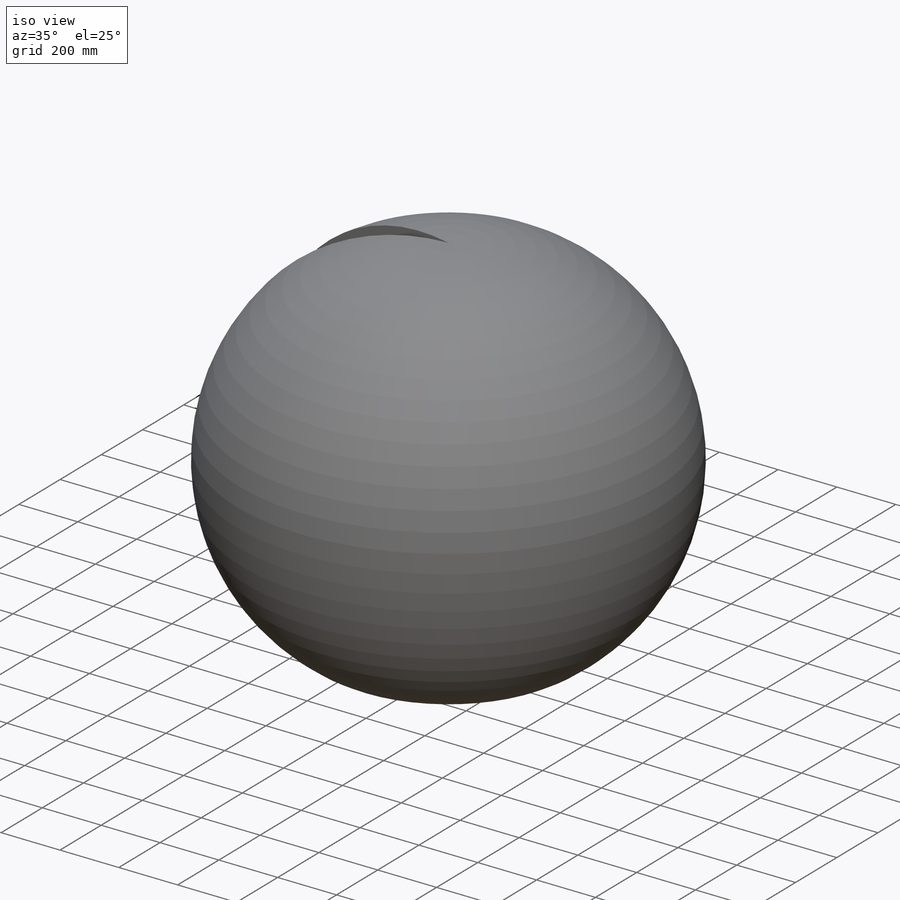
[diagram: iso view]
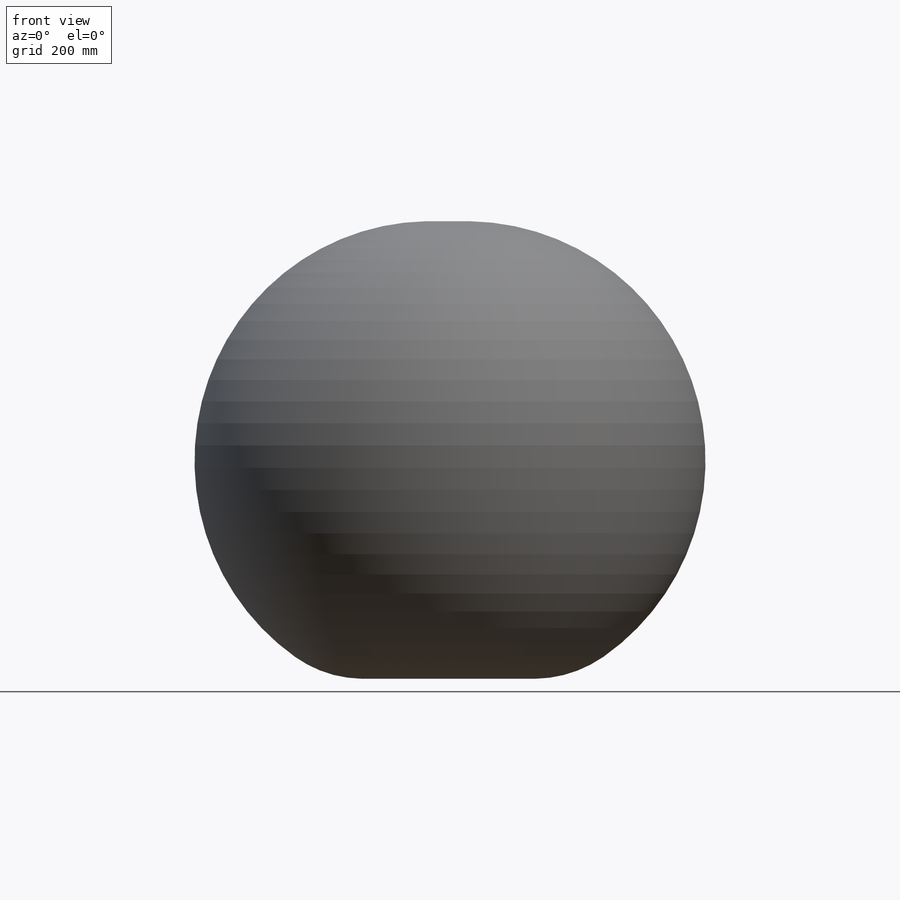
[diagram: front view]
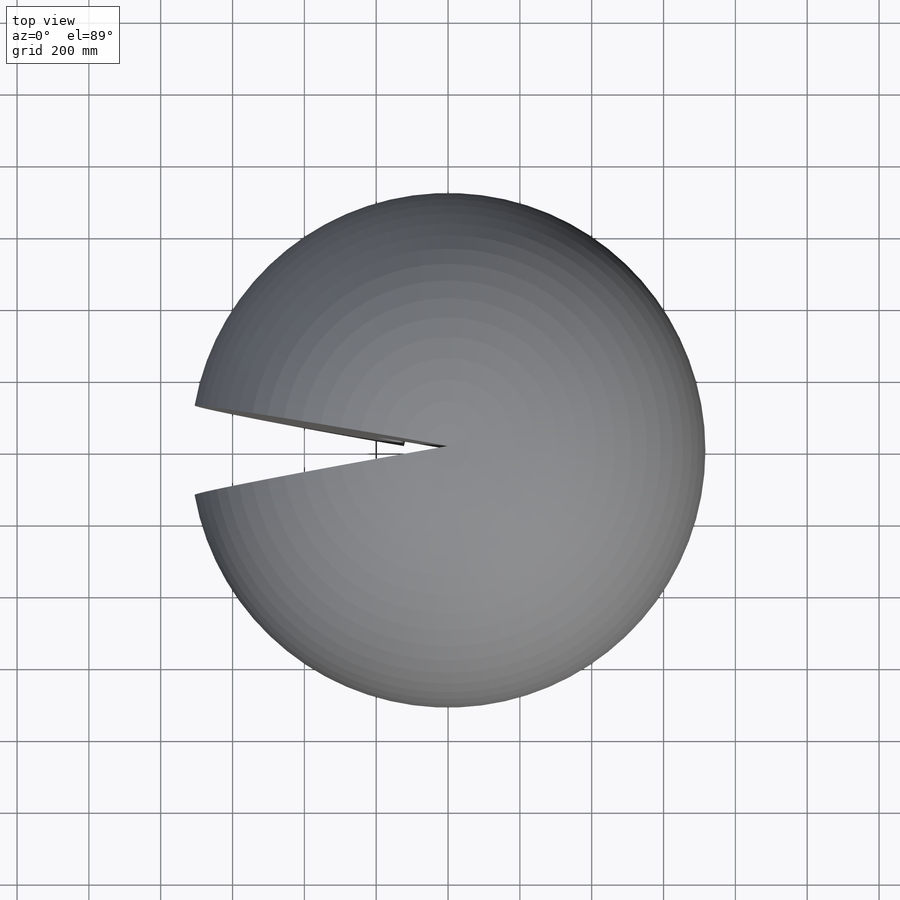
[diagram: top view]
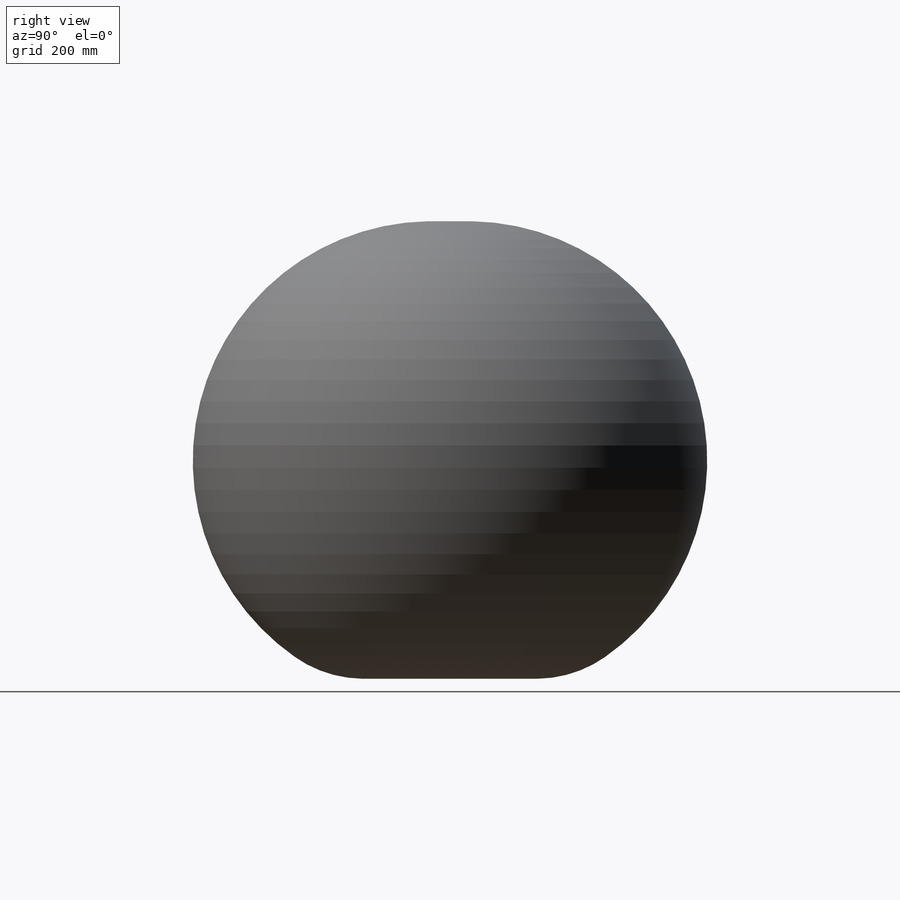
[diagram: right view]
SOLIDWORKS PART (.sldprt)
format: sldprt  version: not decoded by parser v0  size: 379,392 bytes
history: native  units: mm
features: sketch x3, revolve x2, material x1 (+12 scaffold rows collapsed)
feature tree (18):
  scaffold x12  (default folders/planes/origin — collapsed)
  material  "Material <not specified>"
  sketch  "2D Sketch Envelope"  dims[c1.D2=~149.948747mm c1.D3=~149.948747mm c2.D2=50.0mm c2.D3=330.0mm c2.D1=50.0mm c3.D2=717.0mm]
  sketch  "Sketch2"  dims[c1.D2=50.0mm c1.D3=~523.579201mm c2.D2=~2.368048mm c2.D1=0.0mm]
  sketch  "Sketch3"  dims[D1=0.0mm]
  revolve  "Front Envelope"  Angle=340deg
  revolve  "Rear Envelope"  Angle=340deg
decode coverage: 5 of 5 modeling features carry decoded parameters
note: ~ marks probable driven/reference dimensions
note: suppression state not decoded; provenance and decode notes live in map.json
